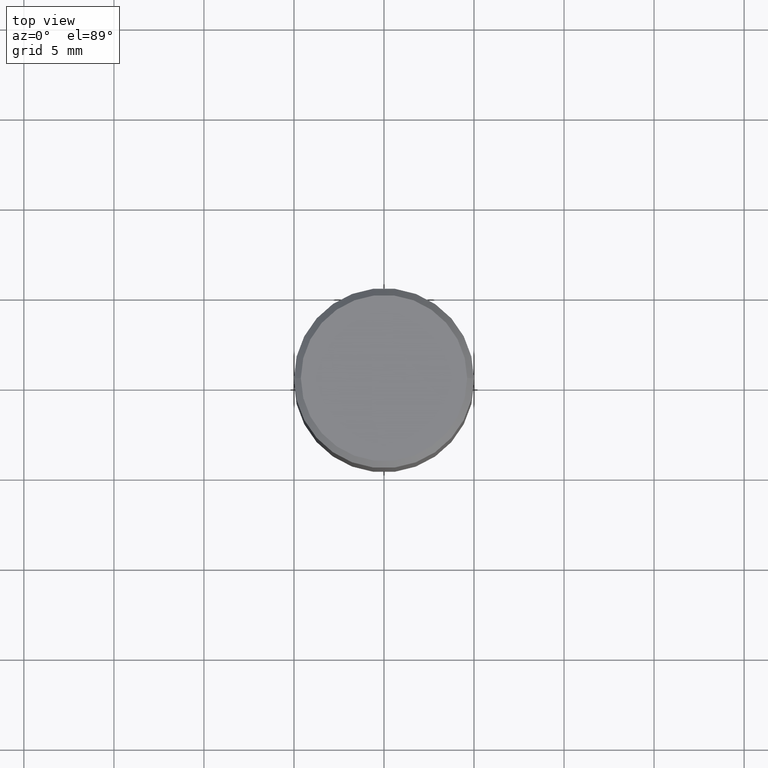
[diagram: clean part render]
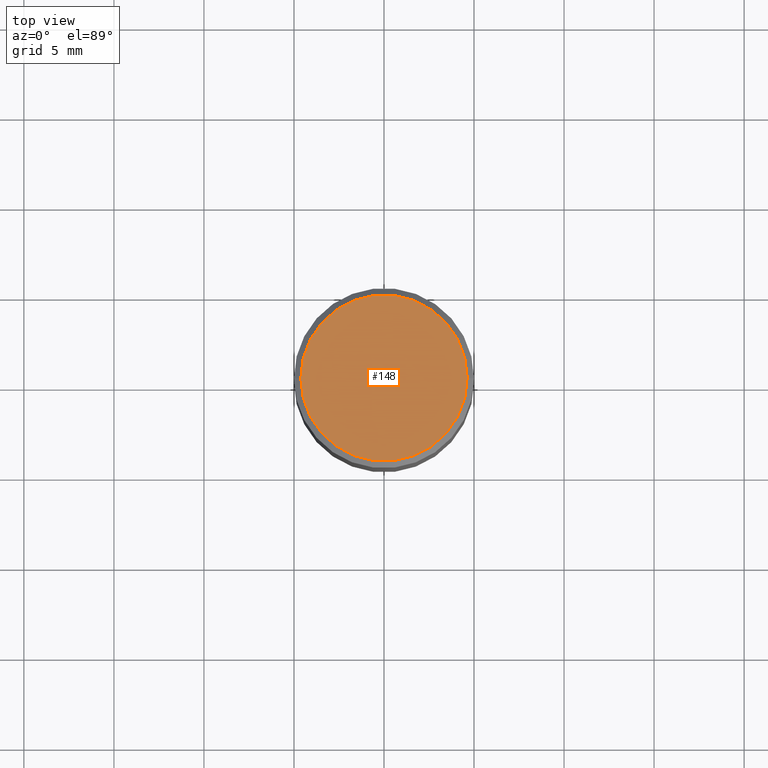
[diagram: same view with one face highlighted and labeled with its STEP entity id]
A machine part, top view. The second image highlights one B-rep face of the part: STEP entity #148.
In plain terms, the highlighted planar face has unit normal (0, -0, -1).
Its self-contained STEP definition (entity closure, byte-faithful):
#9 = VERTEX_POINT ( 'NONE', #292 ) ;
#10 = ORIENTED_EDGE ( 'NONE', *, *, #105, .T. ) ;
#53 = CARTESIAN_POINT ( 'NONE',  ( 1.582769352365941312E-46, -2.259775157835388046E-32, -6.472253288869456262E-18 ) ) ;
#91 = CARTESIAN_POINT ( 'NONE',  ( 1.582769352365941312E-46, -2.259775157835388046E-32, -6.472253288869456262E-18 ) ) ;
#105 = EDGE_CURVE ( 'NONE', #9, #264, #124, .T. ) ;
#124 = CIRCLE ( 'NONE', #194, 0.1818500000000000116 ) ;
#139 = ORIENTED_EDGE ( 'NONE', *, *, #400, .T. ) ;
#148 = ADVANCED_FACE ( 'NONE', ( #407 ), #338, .F. ) ;
#157 = EDGE_LOOP ( 'NONE', ( #10, #139 ) ) ;
#165 = CIRCLE ( 'NONE', #408, 0.1818500000000000116 ) ;
#182 = AXIS2_PLACEMENT_3D ( 'NONE', #301, #243, #365 ) ;
#194 = AXIS2_PLACEMENT_3D ( 'NONE', #91, #298, #347 ) ;
#243 = DIRECTION ( 'NONE',  ( 2.438088387897960049E-29, -3.491481338843145188E-15, -1.000000000000000000 ) ) ;
#264 = VERTEX_POINT ( 'NONE', #447 ) ;
#286 = DIRECTION ( 'NONE',  ( -2.445468806185136597E-29, 3.491481338843145583E-15, 1.000000000000000000 ) ) ;
#292 = CARTESIAN_POINT ( 'NONE',  ( -0.1818500000000000116, 1.296037872978570989E-15, -6.472253288878428014E-18 ) ) ;
#298 = DIRECTION ( 'NONE',  ( -2.445468806185136597E-29, 3.491481338843145583E-15, 1.000000000000000000 ) ) ;
#301 = CARTESIAN_POINT ( 'NONE',  ( 1.269851762937247450E-15, 0.1818500000000000116, -6.381620081130607218E-16 ) ) ;
#338 = PLANE ( 'NONE',  #182 ) ;
#347 = DIRECTION ( 'NONE',  ( 1.000000000000000000, -6.982962677686266711E-15, 4.876336753188190607E-29 ) ) ;
#365 = DIRECTION ( 'NONE',  ( -1.000000000000000000, 6.982962677686265922E-15, -4.876176775795935793E-29 ) ) ;
#400 = EDGE_CURVE ( 'NONE', #264, #9, #165, .T. ) ;
#407 = FACE_OUTER_BOUND ( 'NONE', #157, .T. ) ;
#408 = AXIS2_PLACEMENT_3D ( 'NONE', #53, #286, #454 ) ;
#447 = CARTESIAN_POINT ( 'NONE',  ( 0.1818500000000000116, -1.325221405919363357E-15, -6.472253288860382051E-18 ) ) ;
#454 = DIRECTION ( 'NONE',  ( 1.000000000000000000, -6.982962677686266711E-15, 4.876336753188190607E-29 ) ) ;